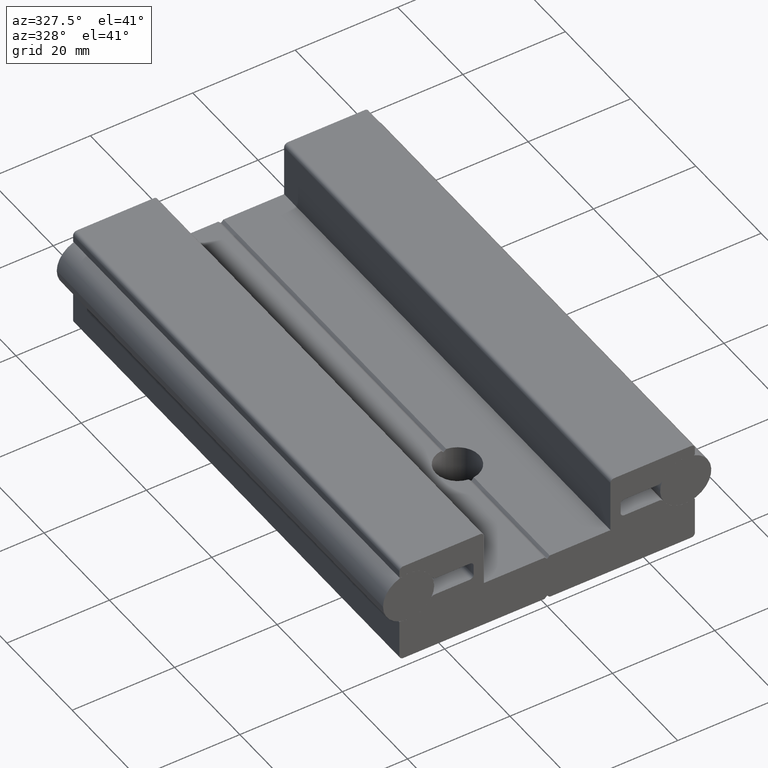
[diagram: clean part render]
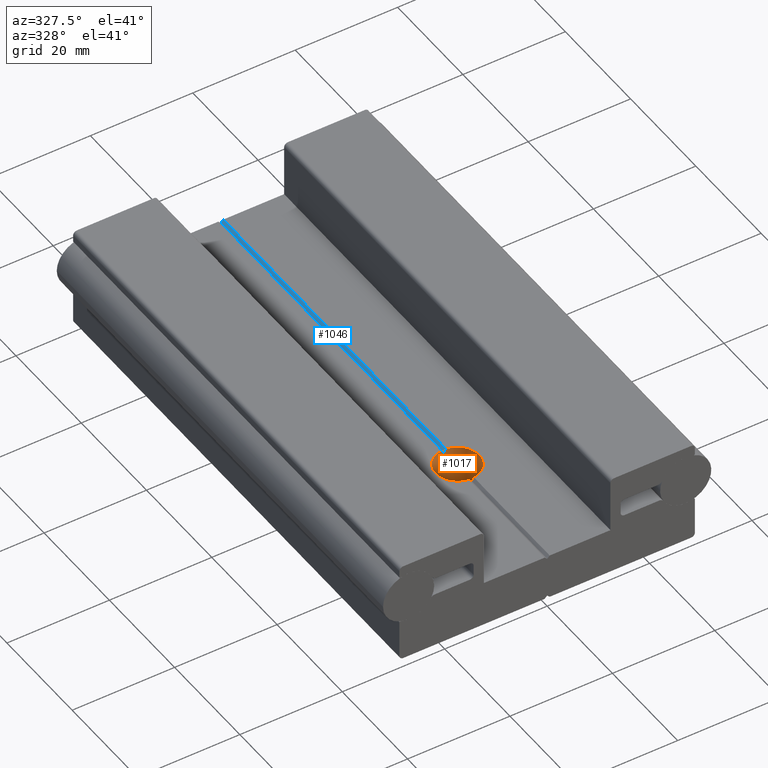
[diagram: same view with the hole feature highlighted: cylindrical wall and planar end face, labeled with their STEP entity ids]
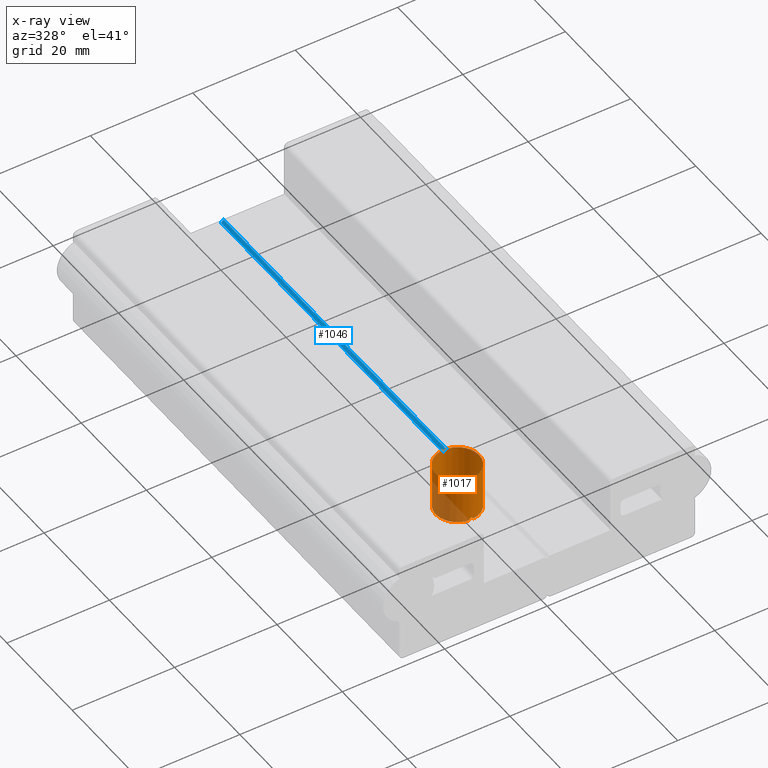
[diagram: x-ray of the same camera — body ghosted, the hole faces saturated]
A machine part, auxiliary view. The highlighted faces form one hole feature of diameter 8.5 mm: the cylindrical wall (entity #1017, orange) and its adjacent planar end face (entity #1046, blue) — they share a circular edge in the B-rep.
The next image is the same camera in x-ray (body ghosted, the hole faces saturated) — the bore reads through the body.
Wall:
#61=FACE_OUTER_BOUND('',#115,.T.);
#115=EDGE_LOOP('',(#681,#682,#683,#684,#685,#686,#687,#688,#689,#690,#691,
#692,#693,#694,#695,#696));
#169=LINE('',#1611,#265);
#265=VECTOR('',#1276,4.25);
#361=CIRCLE('',#1149,4.25);
#362=CIRCLE('',#1150,4.25);
#363=CIRCLE('',#1153,4.25);
#364=CIRCLE('',#1156,4.25);
#365=CIRCLE('',#1157,4.25);
#366=CIRCLE('',#1160,4.25);
#413=ELLIPSE('',#1147,6.01040764008566,4.25);
#414=ELLIPSE('',#1148,6.01040764008565,4.25);
#415=ELLIPSE('',#1151,6.01040764008565,4.25);
#416=ELLIPSE('',#1152,6.01040764008565,4.25);
#417=ELLIPSE('',#1154,6.01040764008565,4.25);
#418=ELLIPSE('',#1155,6.01040764008565,4.25);
#419=ELLIPSE('',#1158,6.01040764008565,4.25);
#420=ELLIPSE('',#1159,6.01040764008566,4.25);
#421=VERTEX_POINT('',#1603);
#422=VERTEX_POINT('',#1604);
#423=VERTEX_POINT('',#1606);
#424=VERTEX_POINT('',#1608);
#425=VERTEX_POINT('',#1610);
#426=VERTEX_POINT('',#1612);
#427=VERTEX_POINT('',#1614);
#428=VERTEX_POINT('',#1616);
#429=VERTEX_POINT('',#1618);
#430=VERTEX_POINT('',#1620);
#431=VERTEX_POINT('',#1622);
#432=VERTEX_POINT('',#1625);
#433=VERTEX_POINT('',#1627);
#434=VERTEX_POINT('',#1629);
#525=EDGE_CURVE('',#421,#422,#413,.T.);
#526=EDGE_CURVE('',#423,#421,#414,.T.);
#527=EDGE_CURVE('',#424,#423,#361,.T.);
#528=EDGE_CURVE('',#424,#425,#169,.T.);
#529=EDGE_CURVE('',#426,#425,#362,.T.);
#530=EDGE_CURVE('',#427,#426,#415,.T.);
#531=EDGE_CURVE('',#428,#427,#416,.T.);
#532=EDGE_CURVE('',#429,#428,#363,.T.);
#533=EDGE_CURVE('',#430,#429,#417,.T.);
#534=EDGE_CURVE('',#431,#430,#418,.T.);
#535=EDGE_CURVE('',#425,#431,#364,.T.);
#536=EDGE_CURVE('',#432,#424,#365,.T.);
#537=EDGE_CURVE('',#433,#432,#419,.T.);
#538=EDGE_CURVE('',#434,#433,#420,.T.);
#539=EDGE_CURVE('',#422,#434,#366,.T.);
#681=ORIENTED_EDGE('',*,*,#525,.F.);
#682=ORIENTED_EDGE('',*,*,#526,.F.);
#683=ORIENTED_EDGE('',*,*,#527,.F.);
#684=ORIENTED_EDGE('',*,*,#528,.T.);
#685=ORIENTED_EDGE('',*,*,#529,.F.);
#686=ORIENTED_EDGE('',*,*,#530,.F.);
#687=ORIENTED_EDGE('',*,*,#531,.F.);
#688=ORIENTED_EDGE('',*,*,#532,.F.);
#689=ORIENTED_EDGE('',*,*,#533,.F.);
#690=ORIENTED_EDGE('',*,*,#534,.F.);
#691=ORIENTED_EDGE('',*,*,#535,.F.);
#692=ORIENTED_EDGE('',*,*,#528,.F.);
#693=ORIENTED_EDGE('',*,*,#536,.F.);
#694=ORIENTED_EDGE('',*,*,#537,.F.);
#695=ORIENTED_EDGE('',*,*,#538,.F.);
#696=ORIENTED_EDGE('',*,*,#539,.F.);
#993=CYLINDRICAL_SURFACE('',#1146,4.25);
#1017=ADVANCED_FACE('',(#61),#993,.F.);
#1146=AXIS2_PLACEMENT_3D('',#1602,#1268,#1269);
#1147=AXIS2_PLACEMENT_3D('',#1605,#1270,#1271);
#1148=AXIS2_PLACEMENT_3D('',#1607,#1272,#1273);
#1149=AXIS2_PLACEMENT_3D('',#1609,#1274,#1275);
#1150=AXIS2_PLACEMENT_3D('',#1613,#1277,#1278);
#1151=AXIS2_PLACEMENT_3D('',#1615,#1279,#1280);
#1152=AXIS2_PLACEMENT_3D('',#1617,#1281,#1282);
#1153=AXIS2_PLACEMENT_3D('',#1619,#1283,#1284);
#1154=AXIS2_PLACEMENT_3D('',#1621,#1285,#1286);
#1155=AXIS2_PLACEMENT_3D('',#1623,#1287,#1288);
#1156=AXIS2_PLACEMENT_3D('',#1624,#1289,#1290);
#1157=AXIS2_PLACEMENT_3D('',#1626,#1291,#1292);
#1158=AXIS2_PLACEMENT_3D('',#1628,#1293,#1294);
#1159=AXIS2_PLACEMENT_3D('',#1630,#1295,#1296);
#1160=AXIS2_PLACEMENT_3D('',#1631,#1297,#1298);
#1268=DIRECTION('center_axis',(0.,0.,1.));
#1269=DIRECTION('ref_axis',(1.,-1.80411241501588E-17,0.));
#1270=DIRECTION('center_axis',(0.707106781186548,0.,-0.707106781186547));
#1271=DIRECTION('ref_axis',(0.707106781186547,-1.27570012268057E-17,0.707106781186548));
#1272=DIRECTION('center_axis',(-0.707106781186547,0.,-0.707106781186548));
#1273=DIRECTION('ref_axis',(0.707106781186548,-1.27570012268057E-17,-0.707106781186547));
#1274=DIRECTION('center_axis',(0.,0.,-1.));
#1275=DIRECTION('ref_axis',(1.,-1.80411241501588E-17,0.));
#1276=DIRECTION('',(0.,0.,-1.));
#1277=DIRECTION('center_axis',(2.67704240119877E-17,0.,1.));
#1278=DIRECTION('ref_axis',(1.,-1.80411241501588E-17,0.));
#1279=DIRECTION('center_axis',(-0.707106781186547,0.,0.707106781186548));
#1280=DIRECTION('ref_axis',(0.707106781186548,-1.27570012268057E-17,0.707106781186547));
#1281=DIRECTION('center_axis',(0.707106781186548,0.,0.707106781186548));
#1282=DIRECTION('ref_axis',(0.707106781186547,-1.27570012268057E-17,-0.707106781186548));
#1283=DIRECTION('center_axis',(-3.05947702994146E-17,0.,1.));
#1284=DIRECTION('ref_axis',(1.,-1.80411241501588E-17,0.));
#1285=DIRECTION('center_axis',(0.707106781186548,0.,0.707106781186548));
#1286=DIRECTION('ref_axis',(0.707106781186547,-1.27570012268057E-17,-0.707106781186548));
#1287=DIRECTION('center_axis',(-0.707106781186547,0.,0.707106781186548));
#1288=DIRECTION('ref_axis',(0.707106781186548,-1.27570012268057E-17,0.707106781186547));
#1289=DIRECTION('center_axis',(2.67704240119877E-17,0.,1.));
#1290=DIRECTION('ref_axis',(1.,-1.80411241501588E-17,0.));
#1291=DIRECTION('center_axis',(0.,0.,-1.));
#1292=DIRECTION('ref_axis',(1.,-1.80411241501588E-17,0.));
#1293=DIRECTION('center_axis',(-0.707106781186547,0.,-0.707106781186548));
#1294=DIRECTION('ref_axis',(0.707106781186548,-1.27570012268057E-17,-0.707106781186547));
#1295=DIRECTION('center_axis',(0.707106781186548,0.,-0.707106781186547));
#1296=DIRECTION('ref_axis',(0.707106781186547,-1.27570012268057E-17,0.707106781186548));
#1297=DIRECTION('center_axis',(1.46390166749098E-16,0.,-1.));
#1298=DIRECTION('ref_axis',(1.,-1.80411241501588E-17,0.));
#1602=CARTESIAN_POINT('Origin',(9.0205620750794E-16,27.5,-1.5));
#1603=CARTESIAN_POINT('',(0.,31.75,8.));
#1604=CARTESIAN_POINT('',(0.5,31.7204857540335,8.5));
#1605=CARTESIAN_POINT('Origin',(9.0205620750794E-16,27.5,8.));
#1606=CARTESIAN_POINT('',(-0.499999999999998,31.7204857540335,8.5));
#1607=CARTESIAN_POINT('Origin',(9.0205620750794E-16,27.5,8.));
#1608=CARTESIAN_POINT('',(-4.25,27.5,8.5));
#1609=CARTESIAN_POINT('Origin',(9.0205620750794E-16,27.5,8.5));
#1610=CARTESIAN_POINT('',(-4.25,27.5,-0.5));
#1611=CARTESIAN_POINT('',(-4.25,27.5,-1.5));
#1612=CARTESIAN_POINT('',(-0.5,31.7204857540335,-0.5));
#1613=CARTESIAN_POINT('Origin',(9.0205620750794E-16,27.5,-0.5));
#1614=CARTESIAN_POINT('',(0.,31.75,0.));
#1615=CARTESIAN_POINT('Origin',(9.0205620750794E-16,27.5,2.77555756156289E-16));
#1616=CARTESIAN_POINT('',(0.499999999999998,31.7204857540335,-0.5));
#1617=CARTESIAN_POINT('Origin',(9.0205620750794E-16,27.5,-1.11022302462516E-15));
#1618=CARTESIAN_POINT('',(0.499999999999998,23.2795142459665,-0.5));
#1619=CARTESIAN_POINT('Origin',(9.0205620750794E-16,27.5,-0.5));
#1620=CARTESIAN_POINT('',(0.,23.25,0.));
#1621=CARTESIAN_POINT('Origin',(9.0205620750794E-16,27.5,-1.11022302462516E-15));
#1622=CARTESIAN_POINT('',(-0.5,23.2795142459665,-0.5));
#1623=CARTESIAN_POINT('Origin',(9.0205620750794E-16,27.5,2.77555756156289E-16));
#1624=CARTESIAN_POINT('Origin',(9.0205620750794E-16,27.5,-0.5));
#1625=CARTESIAN_POINT('',(-0.499999999999998,23.2795142459665,8.5));
#1626=CARTESIAN_POINT('Origin',(9.0205620750794E-16,27.5,8.5));
#1627=CARTESIAN_POINT('',(0.,23.25,8.));
#1628=CARTESIAN_POINT('Origin',(9.0205620750794E-16,27.5,8.));
#1629=CARTESIAN_POINT('',(0.5,23.2795142459665,8.5));
#1630=CARTESIAN_POINT('Origin',(9.0205620750794E-16,27.5,8.));
#1631=CARTESIAN_POINT('Origin',(9.0205620750794E-16,27.5,8.5));
End face:
#49=PLANE('',#1233);
#90=FACE_OUTER_BOUND('',#144,.T.);
#144=EDGE_LOOP('',(#897,#898,#899,#900));
#174=LINE('',#1641,#270);
#196=LINE('',#1704,#292);
#244=LINE('',#1866,#340);
#270=VECTOR('',#1305,10.);
#292=VECTOR('',#1357,10.);
#340=VECTOR('',#1517,10.);
#413=ELLIPSE('',#1147,6.01040764008566,4.25);
#421=VERTEX_POINT('',#1603);
#422=VERTEX_POINT('',#1604);
#438=VERTEX_POINT('',#1639);
#464=VERTEX_POINT('',#1702);
#525=EDGE_CURVE('',#421,#422,#413,.T.);
#544=EDGE_CURVE('',#422,#438,#174,.T.);
#575=EDGE_CURVE('',#464,#438,#196,.T.);
#658=EDGE_CURVE('',#421,#464,#244,.T.);
#897=ORIENTED_EDGE('',*,*,#525,.T.);
#898=ORIENTED_EDGE('',*,*,#544,.T.);
#899=ORIENTED_EDGE('',*,*,#575,.F.);
#900=ORIENTED_EDGE('',*,*,#658,.F.);
#1046=ADVANCED_FACE('',(#90),#49,.T.);
#1147=AXIS2_PLACEMENT_3D('',#1605,#1270,#1271);
#1233=AXIS2_PLACEMENT_3D('',#1867,#1518,#1519);
#1270=DIRECTION('center_axis',(0.707106781186548,0.,-0.707106781186547));
#1271=DIRECTION('ref_axis',(0.707106781186547,-1.27570012268057E-17,0.707106781186548));
#1305=DIRECTION('',(0.,1.,0.));
#1357=DIRECTION('',(0.707106781186546,0.,0.707106781186549));
#1517=DIRECTION('',(0.,1.,0.));
#1518=DIRECTION('center_axis',(-0.707106781186548,0.,0.707106781186547));
#1519=DIRECTION('ref_axis',(0.707106781186547,0.,0.707106781186548));
#1603=CARTESIAN_POINT('',(0.,31.75,8.));
#1604=CARTESIAN_POINT('',(0.5,31.7204857540335,8.5));
#1605=CARTESIAN_POINT('Origin',(9.0205620750794E-16,27.5,8.));
#1639=CARTESIAN_POINT('',(0.499999999999998,100.,8.5));
#1641=CARTESIAN_POINT('',(0.499999999999998,0.,8.5));
#1702=CARTESIAN_POINT('',(0.,100.,8.));
#1704=CARTESIAN_POINT('',(0.499999999999998,100.,8.5));
#1866=CARTESIAN_POINT('',(0.,0.,8.));
#1867=CARTESIAN_POINT('Origin',(0.,10.,8.));